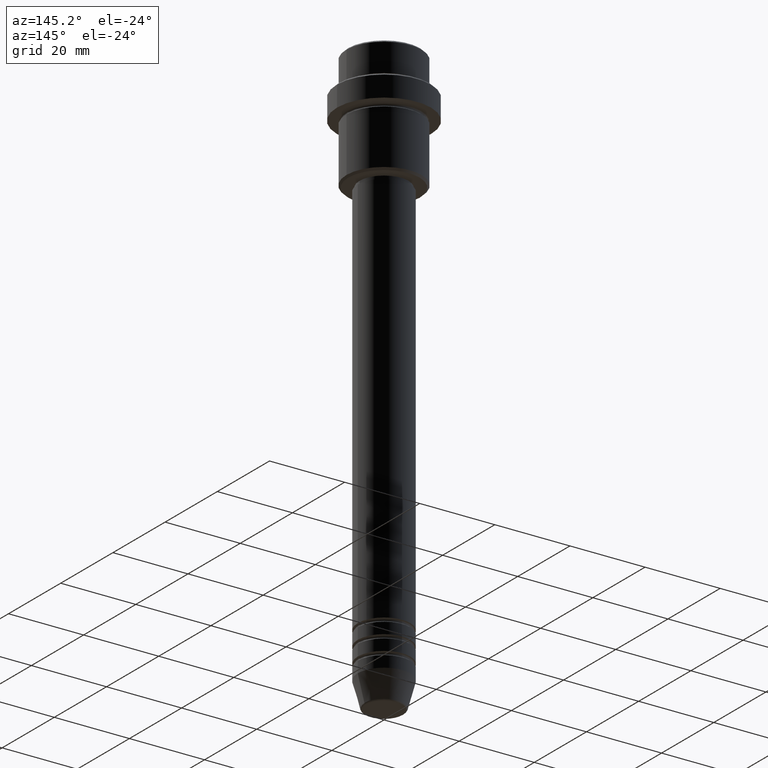
[diagram: clean part render]
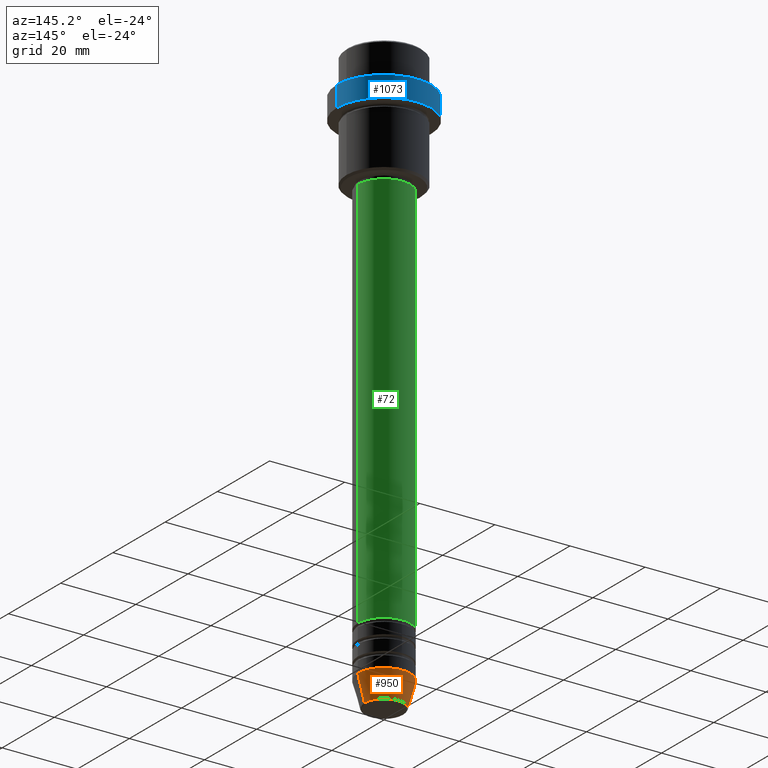
[diagram: same view with three faces highlighted in distinct colors, each labeled with its STEP entity id]
A machine part, auxiliary view with three faces highlighted in distinct colors.
Their STEP definitions:

[orange] entity #950 — the highlighted conical surface has half-angle 15 deg.
#44 = DIRECTION ( 'NONE',  ( -0.000000000000000000, -0.000000000000000000, 1.000000000000000000 ) ) ;
#67 = VERTEX_POINT ( 'NONE', #747 ) ;
#86 = CARTESIAN_POINT ( 'NONE',  ( 0.000000000000000000, 0.000000000000000000, -149.0000000000000000 ) ) ;
#159 = DIRECTION ( 'NONE',  ( 1.000000000000000000, 0.000000000000000000, 0.000000000000000000 ) ) ;
#205 = LINE ( 'NONE', #430, #340 ) ;
#315 = AXIS2_PLACEMENT_3D ( 'NONE', #366, #44, #804 ) ;
#340 = VECTOR ( 'NONE', #1302, 1000.000000000000000 ) ;
#363 = ORIENTED_EDGE ( 'NONE', *, *, #1157, .T. ) ;
#366 = CARTESIAN_POINT ( 'NONE',  ( 0.000000000000000000, 0.000000000000000000, -155.6294095225512137 ) ) ;
#394 = EDGE_LOOP ( 'NONE', ( #896, #363, #628, #786 ) ) ;
#430 = CARTESIAN_POINT ( 'NONE',  ( -7.000000000000000000, 8.572527594031473190E-16, -149.0000000000000000 ) ) ;
#453 = AXIS2_PLACEMENT_3D ( 'NONE', #86, #1250, #1144 ) ;
#549 = DIRECTION ( 'NONE',  ( 0.2588190451025213501, 0.000000000000000000, 0.9659258262890680902 ) ) ;
#566 = CIRCLE ( 'NONE', #1246, 7.000000000000000000 ) ;
#584 = CARTESIAN_POINT ( 'NONE',  ( -7.000000000000000000, 8.572527594031473190E-16, -149.0000000000000000 ) ) ;
#628 = ORIENTED_EDGE ( 'NONE', *, *, #782, .F. ) ;
#632 = FACE_OUTER_BOUND ( 'NONE', #394, .T. ) ;
#663 = EDGE_CURVE ( 'NONE', #1339, #67, #777, .T. ) ;
#719 = VECTOR ( 'NONE', #549, 1000.000000000000000 ) ;
#747 = CARTESIAN_POINT ( 'NONE',  ( 7.000000000000000000, 0.000000000000000000, -149.0000000000000000 ) ) ;
#777 = LINE ( 'NONE', #873, #719 ) ;
#778 = VERTEX_POINT ( 'NONE', #584 ) ;
#782 = EDGE_CURVE ( 'NONE', #67, #778, #566, .T. ) ;
#786 = ORIENTED_EDGE ( 'NONE', *, *, #663, .F. ) ;
#798 = CARTESIAN_POINT ( 'NONE',  ( -5.223655072137196598, 7.484830028987062146E-16, -155.6294095225512137 ) ) ;
#804 = DIRECTION ( 'NONE',  ( 1.000000000000000000, 0.000000000000000000, 0.000000000000000000 ) ) ;
#847 = EDGE_CURVE ( 'NONE', #1339, #852, #1010, .T. ) ;
#852 = VERTEX_POINT ( 'NONE', #798 ) ;
#873 = CARTESIAN_POINT ( 'NONE',  ( 7.000000000000000000, 0.000000000000000000, -149.0000000000000000 ) ) ;
#887 = CARTESIAN_POINT ( 'NONE',  ( 5.223655072137196598, 0.000000000000000000, -155.6294095225512137 ) ) ;
#896 = ORIENTED_EDGE ( 'NONE', *, *, #847, .T. ) ;
#950 = ADVANCED_FACE ( 'NONE', ( #632 ), #1219, .T. ) ;
#1010 = CIRCLE ( 'NONE', #315, 5.223655072137196598 ) ;
#1100 = CARTESIAN_POINT ( 'NONE',  ( 0.000000000000000000, 0.000000000000000000, -149.0000000000000000 ) ) ;
#1144 = DIRECTION ( 'NONE',  ( 1.000000000000000000, 0.000000000000000000, 0.000000000000000000 ) ) ;
#1157 = EDGE_CURVE ( 'NONE', #852, #778, #205, .T. ) ;
#1219 = CONICAL_SURFACE ( 'NONE', #453, 7.000000000000000000, 0.2617993877991500740 ) ;
#1246 = AXIS2_PLACEMENT_3D ( 'NONE', #1100, #1336, #159 ) ;
#1250 = DIRECTION ( 'NONE',  ( -0.000000000000000000, -0.000000000000000000, 1.000000000000000000 ) ) ;
#1302 = DIRECTION ( 'NONE',  ( -0.2588190451025213501, 3.169619151431772337E-17, 0.9659258262890680902 ) ) ;
#1336 = DIRECTION ( 'NONE',  ( -0.000000000000000000, -0.000000000000000000, 1.000000000000000000 ) ) ;
#1339 = VERTEX_POINT ( 'NONE', #887 ) ;

[blue] entity #1073 — the highlighted cylindrical surface (partial cylindrical patch) has radius 12.5 mm, axis along (-0, -0, 1).
#43 = DIRECTION ( 'NONE',  ( 1.000000000000000000, 0.000000000000000000, 0.000000000000000000 ) ) ;
#124 = VERTEX_POINT ( 'NONE', #299 ) ;
#202 = EDGE_CURVE ( 'NONE', #680, #1400, #1333, .T. ) ;
#272 = CIRCLE ( 'NONE', #1147, 12.50000000000000000 ) ;
#279 = ORIENTED_EDGE ( 'NONE', *, *, #1295, .T. ) ;
#282 = ORIENTED_EDGE ( 'NONE', *, *, #362, .T. ) ;
#299 = CARTESIAN_POINT ( 'NONE',  ( -12.50000000000000000, 1.530808498934191521E-15, -9.499999999999976907 ) ) ;
#320 = EDGE_CURVE ( 'NONE', #680, #1085, #336, .T. ) ;
#336 = CIRCLE ( 'NONE', #522, 12.50000000000000000 ) ;
#352 = DIRECTION ( 'NONE',  ( -0.000000000000000000, -0.000000000000000000, 1.000000000000000000 ) ) ;
#362 = EDGE_CURVE ( 'NONE', #1085, #124, #1280, .T. ) ;
#370 = EDGE_LOOP ( 'NONE', ( #802, #282, #279, #1210 ) ) ;
#417 = CARTESIAN_POINT ( 'NONE',  ( 12.50000000000000000, 0.000000000000000000, -9.499999999999976907 ) ) ;
#459 = DIRECTION ( 'NONE',  ( 0.000000000000000000, 0.000000000000000000, -1.000000000000000000 ) ) ;
#522 = AXIS2_PLACEMENT_3D ( 'NONE', #1286, #1397, #1405 ) ;
#547 = CARTESIAN_POINT ( 'NONE',  ( 0.000000000000000000, 0.000000000000000000, 0.000000000000000000 ) ) ;
#562 = VECTOR ( 'NONE', #828, 1000.000000000000000 ) ;
#641 = DIRECTION ( 'NONE',  ( -0.000000000000000000, -0.000000000000000000, 1.000000000000000000 ) ) ;
#680 = VERTEX_POINT ( 'NONE', #1180 ) ;
#750 = CYLINDRICAL_SURFACE ( 'NONE', #1343, 12.50000000000000000 ) ;
#755 = FACE_OUTER_BOUND ( 'NONE', #370, .T. ) ;
#802 = ORIENTED_EDGE ( 'NONE', *, *, #320, .T. ) ;
#828 = DIRECTION ( 'NONE',  ( -0.000000000000000000, -0.000000000000000000, 1.000000000000000000 ) ) ;
#954 = CARTESIAN_POINT ( 'NONE',  ( -12.50000000000000000, 1.530808498934191521E-15, 0.000000000000000000 ) ) ;
#1073 = ADVANCED_FACE ( 'NONE', ( #755 ), #750, .T. ) ;
#1085 = VERTEX_POINT ( 'NONE', #1312 ) ;
#1122 = CARTESIAN_POINT ( 'NONE',  ( 0.000000000000000000, 0.000000000000000000, -9.499999999999976907 ) ) ;
#1147 = AXIS2_PLACEMENT_3D ( 'NONE', #1122, #459, #43 ) ;
#1180 = CARTESIAN_POINT ( 'NONE',  ( 12.50000000000000000, 0.000000000000000000, -15.00000000000000000 ) ) ;
#1210 = ORIENTED_EDGE ( 'NONE', *, *, #202, .F. ) ;
#1211 = CARTESIAN_POINT ( 'NONE',  ( 12.50000000000000000, 0.000000000000000000, 0.000000000000000000 ) ) ;
#1280 = LINE ( 'NONE', #954, #562 ) ;
#1286 = CARTESIAN_POINT ( 'NONE',  ( 0.000000000000000000, 0.000000000000000000, -15.00000000000000000 ) ) ;
#1295 = EDGE_CURVE ( 'NONE', #124, #1400, #272, .T. ) ;
#1312 = CARTESIAN_POINT ( 'NONE',  ( -12.50000000000000000, 1.530808498934191521E-15, -15.00000000000000000 ) ) ;
#1333 = LINE ( 'NONE', #1211, #1337 ) ;
#1337 = VECTOR ( 'NONE', #352, 1000.000000000000000 ) ;
#1343 = AXIS2_PLACEMENT_3D ( 'NONE', #547, #641, #1399 ) ;
#1397 = DIRECTION ( 'NONE',  ( -0.000000000000000000, -0.000000000000000000, 1.000000000000000000 ) ) ;
#1399 = DIRECTION ( 'NONE',  ( 1.000000000000000000, 0.000000000000000000, 0.000000000000000000 ) ) ;
#1400 = VERTEX_POINT ( 'NONE', #417 ) ;
#1405 = DIRECTION ( 'NONE',  ( 1.000000000000000000, 0.000000000000000000, 0.000000000000000000 ) ) ;

[green] entity #72 — the highlighted cylindrical surface (edge-blend (fillet) strip) has radius 7 mm, axis along (-0, -0, 1).
#18 = CIRCLE ( 'NONE', #814, 7.000000000000000000 ) ;
#19 = CIRCLE ( 'NONE', #1320, 7.000000000000000000 ) ;
#48 = EDGE_CURVE ( 'NONE', #707, #1189, #19, .T. ) ;
#72 = ADVANCED_FACE ( 'NONE', ( #1177 ), #829, .T. ) ;
#80 = DIRECTION ( 'NONE',  ( -0.000000000000000000, -0.000000000000000000, 1.000000000000000000 ) ) ;
#118 = VERTEX_POINT ( 'NONE', #626 ) ;
#138 = EDGE_LOOP ( 'NONE', ( #642, #960, #1163, #899 ) ) ;
#145 = DIRECTION ( 'NONE',  ( -0.000000000000000000, -0.000000000000000000, 1.000000000000000000 ) ) ;
#192 = DIRECTION ( 'NONE',  ( -0.000000000000000000, -0.000000000000000000, 1.000000000000000000 ) ) ;
#252 = LINE ( 'NONE', #676, #901 ) ;
#526 = DIRECTION ( 'NONE',  ( 1.000000000000000000, 0.000000000000000000, 0.000000000000000000 ) ) ;
#537 = CARTESIAN_POINT ( 'NONE',  ( 7.000000000000000000, 0.000000000000000000, -136.9999999999998863 ) ) ;
#609 = CARTESIAN_POINT ( 'NONE',  ( 7.000000000000000000, 0.000000000000000000, 0.000000000000000000 ) ) ;
#626 = CARTESIAN_POINT ( 'NONE',  ( -7.000000000000000000, 8.572527594031473190E-16, -136.9999999999998863 ) ) ;
#631 = DIRECTION ( 'NONE',  ( 1.000000000000000000, 0.000000000000000000, 0.000000000000000000 ) ) ;
#639 = CARTESIAN_POINT ( 'NONE',  ( 0.000000000000000000, 0.000000000000000000, -32.00000000000000000 ) ) ;
#642 = ORIENTED_EDGE ( 'NONE', *, *, #1374, .T. ) ;
#647 = CARTESIAN_POINT ( 'NONE',  ( -7.000000000000000000, 8.572527594031473190E-16, -32.00000000000000000 ) ) ;
#676 = CARTESIAN_POINT ( 'NONE',  ( -7.000000000000000000, 8.572527594031473190E-16, 0.000000000000000000 ) ) ;
#707 = VERTEX_POINT ( 'NONE', #1412 ) ;
#814 = AXIS2_PLACEMENT_3D ( 'NONE', #1408, #192, #1044 ) ;
#829 = CYLINDRICAL_SURFACE ( 'NONE', #991, 7.000000000000000000 ) ;
#849 = EDGE_CURVE ( 'NONE', #118, #1189, #252, .T. ) ;
#860 = DIRECTION ( 'NONE',  ( -0.000000000000000000, -0.000000000000000000, 1.000000000000000000 ) ) ;
#879 = VECTOR ( 'NONE', #80, 1000.000000000000000 ) ;
#899 = ORIENTED_EDGE ( 'NONE', *, *, #930, .F. ) ;
#901 = VECTOR ( 'NONE', #145, 1000.000000000000000 ) ;
#930 = EDGE_CURVE ( 'NONE', #1101, #707, #1021, .T. ) ;
#960 = ORIENTED_EDGE ( 'NONE', *, *, #849, .T. ) ;
#961 = CARTESIAN_POINT ( 'NONE',  ( 0.000000000000000000, 0.000000000000000000, 0.000000000000000000 ) ) ;
#991 = AXIS2_PLACEMENT_3D ( 'NONE', #961, #860, #631 ) ;
#1021 = LINE ( 'NONE', #609, #879 ) ;
#1044 = DIRECTION ( 'NONE',  ( 1.000000000000000000, 0.000000000000000000, 0.000000000000000000 ) ) ;
#1101 = VERTEX_POINT ( 'NONE', #537 ) ;
#1163 = ORIENTED_EDGE ( 'NONE', *, *, #48, .F. ) ;
#1177 = FACE_OUTER_BOUND ( 'NONE', #138, .T. ) ;
#1189 = VERTEX_POINT ( 'NONE', #647 ) ;
#1320 = AXIS2_PLACEMENT_3D ( 'NONE', #639, #1394, #526 ) ;
#1374 = EDGE_CURVE ( 'NONE', #1101, #118, #18, .T. ) ;
#1394 = DIRECTION ( 'NONE',  ( -0.000000000000000000, -0.000000000000000000, 1.000000000000000000 ) ) ;
#1408 = CARTESIAN_POINT ( 'NONE',  ( 0.000000000000000000, 0.000000000000000000, -136.9999999999998863 ) ) ;
#1412 = CARTESIAN_POINT ( 'NONE',  ( 7.000000000000000000, 0.000000000000000000, -32.00000000000000000 ) ) ;